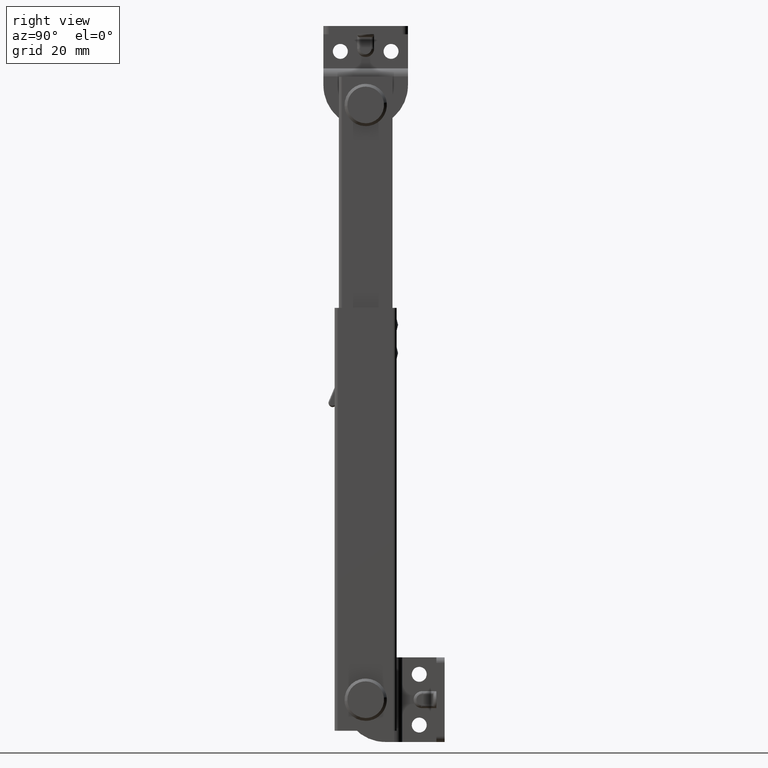
[diagram: clean part render]
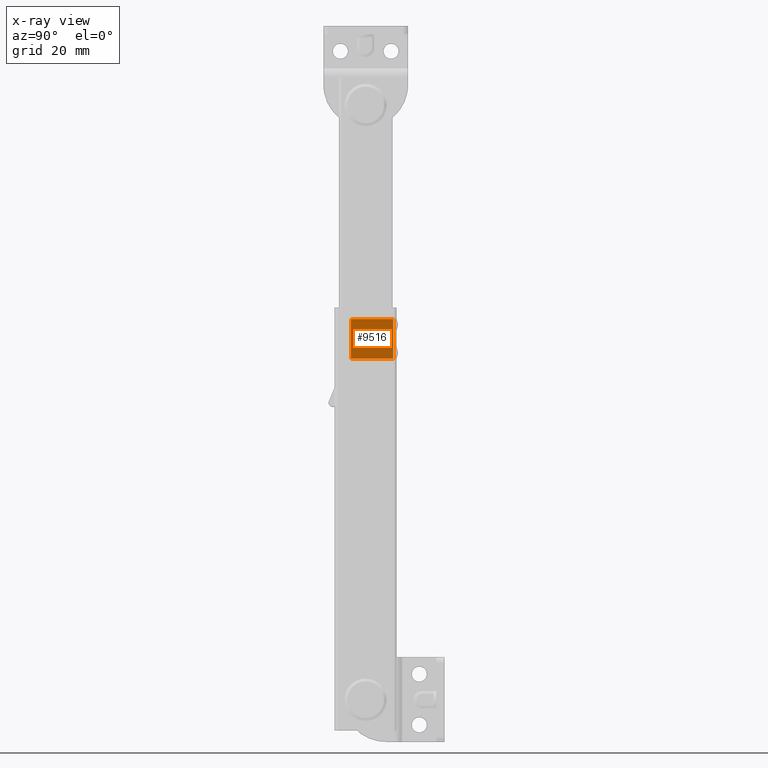
[diagram: x-ray — body ghosted, one internal face saturated and labeled with its STEP entity id]
A machine part, right view, then the same camera in x-ray: the body is ghosted and one INTERNAL B-rep face — a face not visible from any outside direction — is saturated and labeled: STEP entity #9516.
In plain terms, the highlighted face is a freeform B-spline surface patch.
Its self-contained STEP definition (entity closure, byte-faithful):
#8993=CARTESIAN_POINT('',(-3.699997000000235,9.799999999999999,123.748326265736790));
#8994=VERTEX_POINT('',#8993);
#9010=CARTESIAN_POINT('',(-3.699997000000195,9.799999999999999,122.251673734263210));
#9011=VERTEX_POINT('',#9010);
#9181=CARTESIAN_POINT('',(-3.699997000000230,9.799999999999999,133.748326265736810));
#9182=VERTEX_POINT('',#9181);
#9198=CARTESIAN_POINT('',(-3.699997000000235,9.799999999999999,132.251673734263190));
#9199=VERTEX_POINT('',#9198);
#9370=CARTESIAN_POINT('',(-3.699997000000235,9.799999999999999,123.748326265736790));
#9371=CARTESIAN_POINT('',(-3.699997000000195,9.799999999999999,122.251673734263210));
#9372=QUASI_UNIFORM_CURVE('',1,(#9370,#9371),.UNSPECIFIED.,.F.,.U.);
#9373=EDGE_CURVE('',#8994,#9011,#9372,.T.);
#9461=CARTESIAN_POINT('',(-3.699997000000230,9.799999999999999,133.748326265736810));
#9462=CARTESIAN_POINT('',(-3.699997000000235,9.799999999999999,132.251673734263190));
#9463=QUASI_UNIFORM_CURVE('',1,(#9461,#9462),.UNSPECIFIED.,.F.,.U.);
#9464=EDGE_CURVE('',#9182,#9199,#9463,.T.);
#9469=CARTESIAN_POINT('',(-3.699997000000195,-6.026722746678479,135.699299973075000));
#9470=CARTESIAN_POINT('',(-3.699997000000195,10.552936041227159,135.699299973075000));
#9471=CARTESIAN_POINT('',(-3.699997000000195,-6.026722746678479,120.300699647217300));
#9472=CARTESIAN_POINT('',(-3.699997000000195,10.552936041227159,120.300699647217300));
#9473=B_SPLINE_SURFACE_WITH_KNOTS('',1,1,((#9469,#9471),(#9470,#9472)),.UNSPECIFIED.,.F.,.F.,.U.,(2,2),(2,2),(0.0,16.579658787905640),(0.0,15.398600325857680),.UNSPECIFIED.);
#9474=CARTESIAN_POINT('',(-3.699997000000235,-5.273787244531961,120.999999995801600));
#9475=VERTEX_POINT('',#9474);
#9476=CARTESIAN_POINT('',(-3.699997000000235,-5.273787244531961,135.0));
#9477=VERTEX_POINT('',#9476);
#9478=CARTESIAN_POINT('',(-3.699997000000235,-5.273787244531961,120.999999995801600));
#9479=CARTESIAN_POINT('',(-3.699997000000235,-5.273787244531961,135.0));
#9480=QUASI_UNIFORM_CURVE('',1,(#9478,#9479),.UNSPECIFIED.,.F.,.U.);
#9481=EDGE_CURVE('',#9475,#9477,#9480,.T.);
#9482=ORIENTED_EDGE('',*,*,#9481,.F.);
#9483=CARTESIAN_POINT('',(-3.699997000000235,9.799999999999999,120.999999995801600));
#9484=VERTEX_POINT('',#9483);
#9485=CARTESIAN_POINT('',(-3.699997000000235,9.799999999999999,120.999999995801600));
#9486=CARTESIAN_POINT('',(-3.699997000000235,-5.273787244531961,120.999999995801600));
#9487=QUASI_UNIFORM_CURVE('',1,(#9485,#9486),.UNSPECIFIED.,.F.,.U.);
#9488=EDGE_CURVE('',#9484,#9475,#9487,.T.);
#9489=ORIENTED_EDGE('',*,*,#9488,.F.);
#9490=CARTESIAN_POINT('',(-3.699997000000195,9.799999999999999,122.251673734263210));
#9491=CARTESIAN_POINT('',(-3.699997000000235,9.799999999999999,120.999999995801600));
#9492=QUASI_UNIFORM_CURVE('',1,(#9490,#9491),.UNSPECIFIED.,.F.,.U.);
#9493=EDGE_CURVE('',#9011,#9484,#9492,.T.);
#9494=ORIENTED_EDGE('',*,*,#9493,.F.);
#9495=ORIENTED_EDGE('',*,*,#9373,.F.);
#9496=CARTESIAN_POINT('',(-3.699997000000235,9.799999999999999,132.251673734263190));
#9497=CARTESIAN_POINT('',(-3.699997000000235,9.799999999999999,123.748326265736790));
#9498=QUASI_UNIFORM_CURVE('',1,(#9496,#9497),.UNSPECIFIED.,.F.,.U.);
#9499=EDGE_CURVE('',#9199,#8994,#9498,.T.);
#9500=ORIENTED_EDGE('',*,*,#9499,.F.);
#9501=ORIENTED_EDGE('',*,*,#9464,.F.);
#9502=CARTESIAN_POINT('',(-3.699997000000235,9.799999999999999,135.0));
#9503=VERTEX_POINT('',#9502);
#9504=CARTESIAN_POINT('',(-3.699997000000235,9.799999999999999,135.0));
#9505=CARTESIAN_POINT('',(-3.699997000000230,9.799999999999999,133.748326265736810));
#9506=QUASI_UNIFORM_CURVE('',1,(#9504,#9505),.UNSPECIFIED.,.F.,.U.);
#9507=EDGE_CURVE('',#9503,#9182,#9506,.T.);
#9508=ORIENTED_EDGE('',*,*,#9507,.F.);
#9509=CARTESIAN_POINT('',(-3.699997000000235,-5.273787244531961,135.0));
#9510=CARTESIAN_POINT('',(-3.699997000000235,9.799999999999999,135.0));
#9511=QUASI_UNIFORM_CURVE('',1,(#9509,#9510),.UNSPECIFIED.,.F.,.U.);
#9512=EDGE_CURVE('',#9477,#9503,#9511,.T.);
#9513=ORIENTED_EDGE('',*,*,#9512,.F.);
#9514=EDGE_LOOP('',(#9482,#9489,#9494,#9495,#9500,#9501,#9508,#9513));
#9515=FACE_OUTER_BOUND('',#9514,.T.);
#9516=ADVANCED_FACE('',(#9515),#9473,.F.);